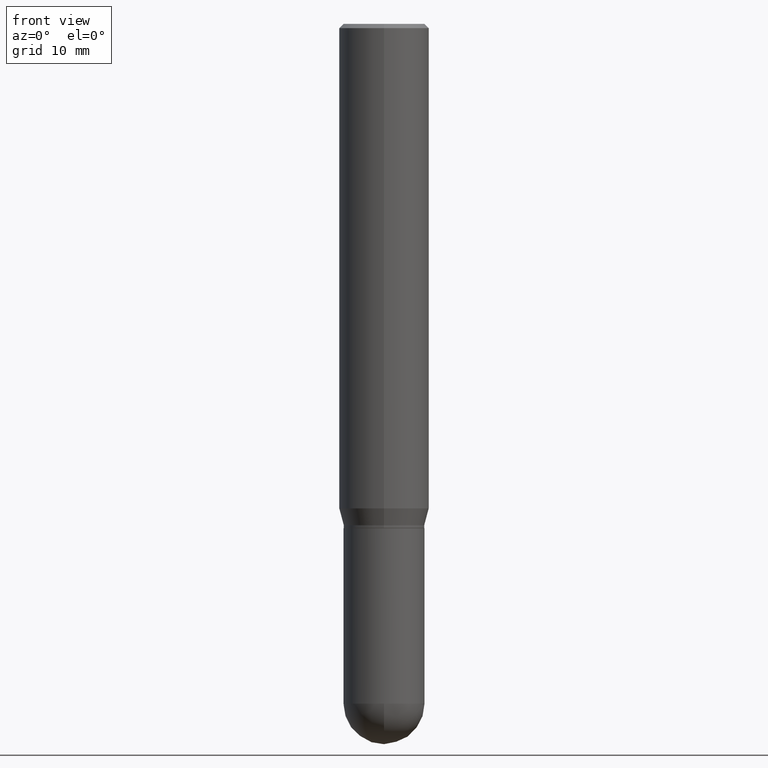
[diagram: clean part render]
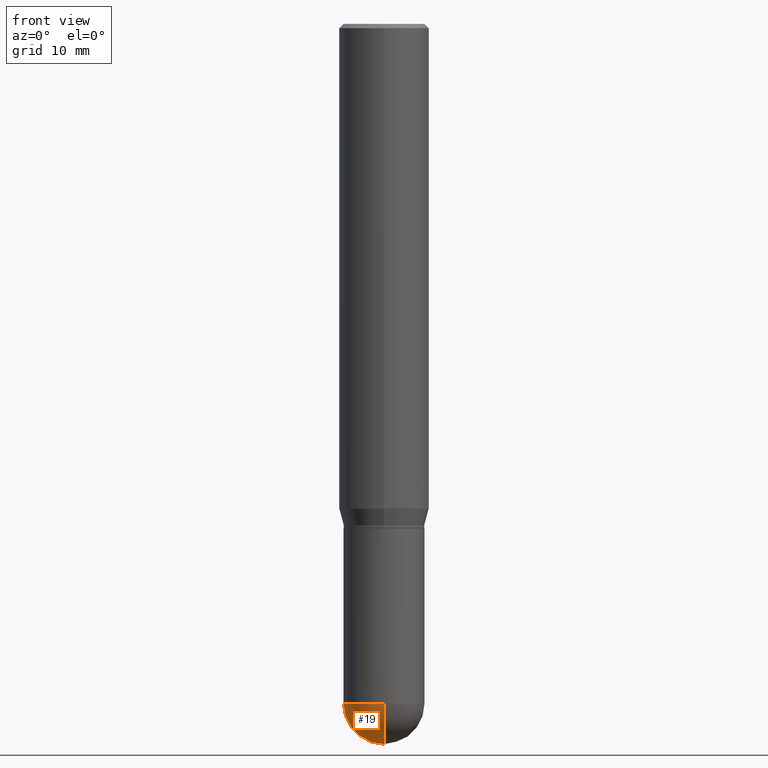
[diagram: same view with one face highlighted and labeled with its STEP entity id]
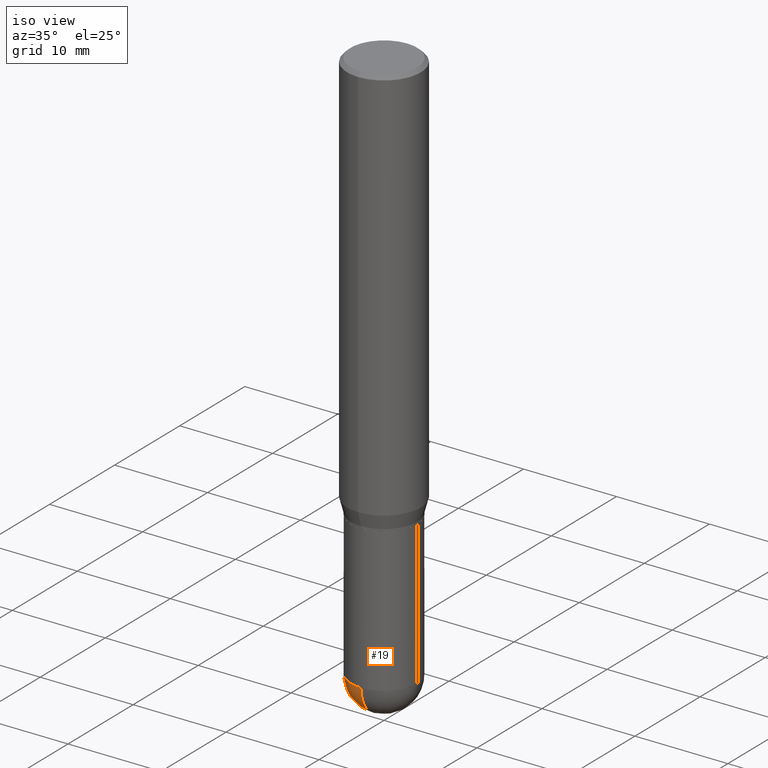
[diagram: same view with one face highlighted and labeled with its STEP entity id]
A machine part, front view. The second image highlights one B-rep face of the part: STEP entity #19.
A second angle (iso view) of the same face is appended — the face is thin or edge-on in the first view.
In plain terms, the highlighted spherical surface has radius 3.5712 mm.
Its self-contained STEP definition (entity closure, byte-faithful):
#5 = EDGE_CURVE ( 'NONE', #476, #144, #56, .T. ) ;
#19 = ADVANCED_FACE ( 'NONE', ( #381 ), #469, .T. ) ;
#56 = CIRCLE ( 'NONE', #351, 0.1406000000000000305 ) ;
#66 = DIRECTION ( 'NONE',  ( -1.000000000000000000, 6.982962677686265922E-15, -4.883557194083112340E-29 ) ) ;
#93 = CARTESIAN_POINT ( 'NONE',  ( -9.990230864786434913E-16, -0.1406000000000083017, -2.359399999999999498 ) ) ;
#96 = CARTESIAN_POINT ( 'NONE',  ( 5.769839101313211634E-29, -8.237801070866517629E-15, -2.359399999999999942 ) ) ;
#97 = DIRECTION ( 'NONE',  ( 1.000000000000000000, -6.982962677686270655E-15, 0.000000000000000000 ) ) ;
#112 = DIRECTION ( 'NONE',  ( 1.000000000000000000, -6.982962677686270655E-15, 0.000000000000000000 ) ) ;
#122 = ORIENTED_EDGE ( 'NONE', *, *, #462, .F. ) ;
#131 = CARTESIAN_POINT ( 'NONE',  ( 5.757815463287349061E-29, -8.255019604862529009E-15, -2.359399999999999942 ) ) ;
#141 = AXIS2_PLACEMENT_3D ( 'NONE', #317, #66, #355 ) ;
#143 = CARTESIAN_POINT ( 'NONE',  ( 6.107660196449910766E-29, -8.737312614105869844E-15, -2.500000000000000000 ) ) ;
#144 = VERTEX_POINT ( 'NONE', #398 ) ;
#155 = AXIS2_PLACEMENT_3D ( 'NONE', #96, #458, #97 ) ;
#226 = CARTESIAN_POINT ( 'NONE',  ( 9.818045524827470871E-16, 0.1405999999999918426, -2.359400000000000386 ) ) ;
#239 = CIRCLE ( 'NONE', #315, 0.1406000000000000860 ) ;
#246 = DIRECTION ( 'NONE',  ( -1.000000000000000000, 7.105427357601001070E-15, -4.926315508542082329E-29 ) ) ;
#248 = VERTEX_POINT ( 'NONE', #93 ) ;
#256 = EDGE_CURVE ( 'NONE', #319, #248, #239, .T. ) ;
#265 = CARTESIAN_POINT ( 'NONE',  ( 5.769839101313211634E-29, -8.237801070866517629E-15, -2.359399999999999942 ) ) ;
#269 = EDGE_LOOP ( 'NONE', ( #122, #434, #345, #466 ) ) ;
#310 = DIRECTION ( 'NONE',  ( -2.445468806185136597E-29, 3.491481338843145583E-15, 1.000000000000000000 ) ) ;
#313 = EDGE_CURVE ( 'NONE', #144, #248, #473, .T. ) ;
#315 = AXIS2_PLACEMENT_3D ( 'NONE', #131, #246, #405 ) ;
#317 = CARTESIAN_POINT ( 'NONE',  ( 5.757815463287349061E-29, -8.255019604862529009E-15, -2.359399999999999942 ) ) ;
#319 = VERTEX_POINT ( 'NONE', #143 ) ;
#321 = CIRCLE ( 'NONE', #354, 0.1406000000000000860 ) ;
#345 = ORIENTED_EDGE ( 'NONE', *, *, #313, .F. ) ;
#351 = AXIS2_PLACEMENT_3D ( 'NONE', #265, #310, #112 ) ;
#354 = AXIS2_PLACEMENT_3D ( 'NONE', #472, #468, #423 ) ;
#355 = DIRECTION ( 'NONE',  ( 6.982962677686265922E-15, 1.000000000000000000, -3.885985766236502230E-15 ) ) ;
#381 = FACE_OUTER_BOUND ( 'NONE', #269, .T. ) ;
#398 = CARTESIAN_POINT ( 'NONE',  ( -0.1406000000000000583, -6.174923620442310269E-15, -2.359399999999999942 ) ) ;
#405 = DIRECTION ( 'NONE',  ( -7.105427357601001859E-15, -1.000000000000000000, 0.000000000000000000 ) ) ;
#423 = DIRECTION ( 'NONE',  ( 6.982962677686266711E-15, 1.000000000000000000, 0.000000000000000000 ) ) ;
#434 = ORIENTED_EDGE ( 'NONE', *, *, #256, .T. ) ;
#458 = DIRECTION ( 'NONE',  ( -2.445468806185136597E-29, 3.491481338843145583E-15, 1.000000000000000000 ) ) ;
#462 = EDGE_CURVE ( 'NONE', #319, #476, #321, .T. ) ;
#466 = ORIENTED_EDGE ( 'NONE', *, *, #5, .F. ) ;
#468 = DIRECTION ( 'NONE',  ( 1.000000000000000000, -6.982962677686265922E-15, 4.883557194083112340E-29 ) ) ;
#469 = SPHERICAL_SURFACE ( 'NONE', #141, 0.1406000000000000860 ) ;
#472 = CARTESIAN_POINT ( 'NONE',  ( 5.757815463287349061E-29, -8.255019604862529009E-15, -2.359399999999999942 ) ) ;
#473 = CIRCLE ( 'NONE', #155, 0.1406000000000000305 ) ;
#476 = VERTEX_POINT ( 'NONE', #226 ) ;